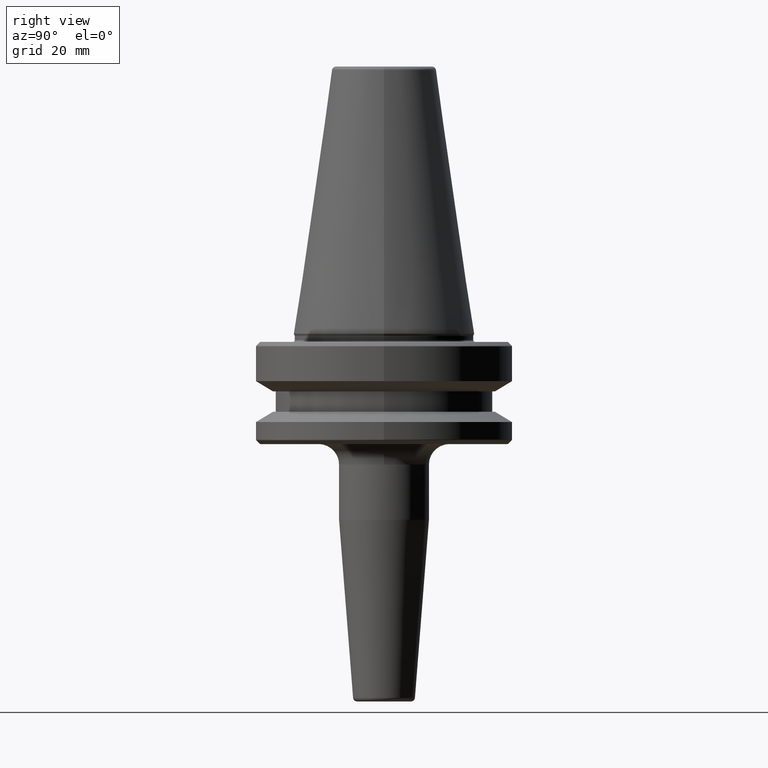
[diagram: clean part render]
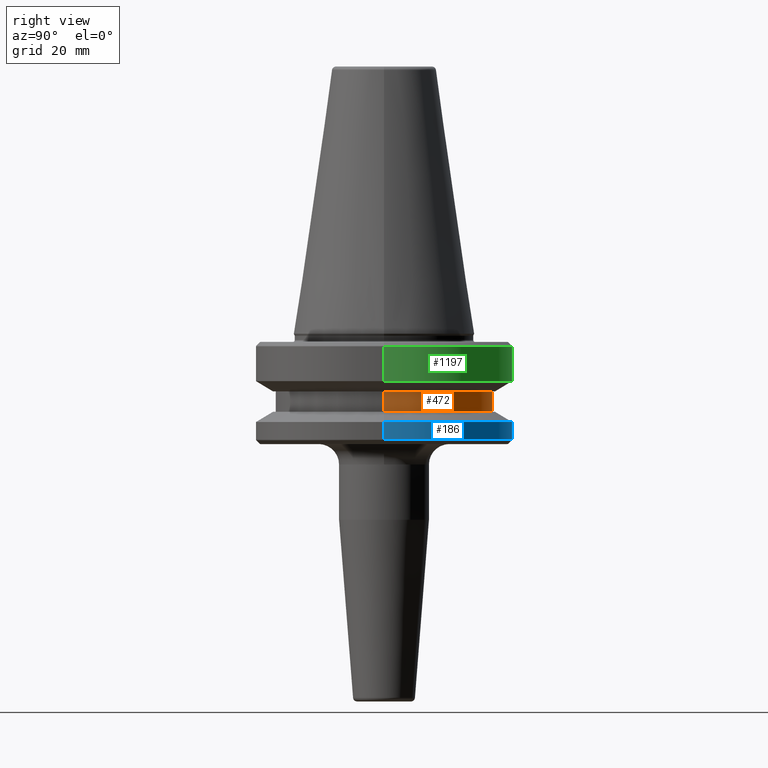
[diagram: same view with three faces highlighted in distinct colors, each labeled with its STEP entity id]
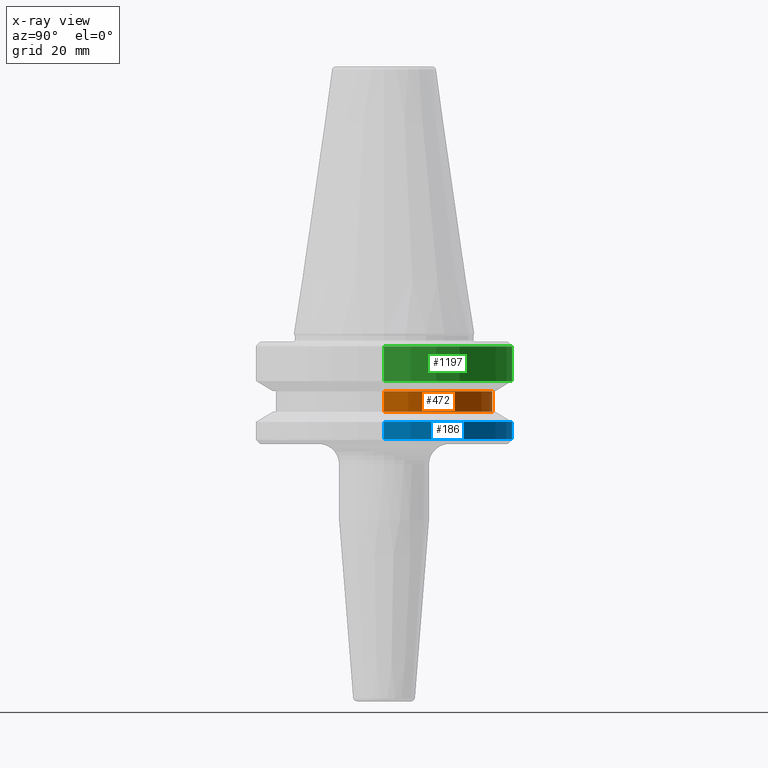
[diagram: x-ray of the same camera — body ghosted, the three highlighted faces saturated]
A machine part, right view with three faces highlighted in distinct colors.
The next image is the same camera in x-ray (body ghosted, the three faces saturated) — at least one of them is partly hidden behind the body in this view.
Their STEP definitions:

[orange] entity #472 — the highlighted cylindrical surface (partial cylindrical patch) has radius 26.5 mm, axis along (-0, -0, 1).
#43 = EDGE_CURVE ( 'NONE', #965, #781, #1105, .T. ) ;
#71 = CARTESIAN_POINT ( 'NONE',  ( -26.50000000000000000, 3.245314017740485800E-015, 69.75694866325665100 ) ) ;
#87 = VERTEX_POINT ( 'NONE', #402 ) ;
#97 = EDGE_CURVE ( 'NONE', #1213, #781, #494, .T. ) ;
#117 = AXIS2_PLACEMENT_3D ( 'NONE', #299, #991, #400 ) ;
#237 = DIRECTION ( 'NONE',  ( -0.0000000000000000000, -0.0000000000000000000, 1.000000000000000000 ) ) ;
#267 = DIRECTION ( 'NONE',  ( -0.0000000000000000000, -0.0000000000000000000, 1.000000000000000000 ) ) ;
#299 = CARTESIAN_POINT ( 'NONE',  ( 0.0000000000000000000, 0.0000000000000000000, -19.10000000000000500 ) ) ;
#335 = CARTESIAN_POINT ( 'NONE',  ( -26.50000000000000000, 3.245314017740485800E-015, -19.10000000000000500 ) ) ;
#400 = DIRECTION ( 'NONE',  ( 1.000000000000000000, 0.0000000000000000000, 0.0000000000000000000 ) ) ;
#401 = AXIS2_PLACEMENT_3D ( 'NONE', #505, #1199, #1050 ) ;
#402 = CARTESIAN_POINT ( 'NONE',  ( 26.50000000000000000, 0.0000000000000000000, -19.10000000000000500 ) ) ;
#417 = VECTOR ( 'NONE', #237, 1000.000000000000000 ) ;
#472 = ADVANCED_FACE ( 'NONE', ( #1008 ), #1248, .T. ) ;
#494 = LINE ( 'NONE', #71, #553 ) ;
#505 = CARTESIAN_POINT ( 'NONE',  ( 0.0000000000000000000, 0.0000000000000000000, -14.10000000000000100 ) ) ;
#530 = EDGE_CURVE ( 'NONE', #87, #1213, #695, .T. ) ;
#550 = DIRECTION ( 'NONE',  ( -0.0000000000000000000, -0.0000000000000000000, 1.000000000000000000 ) ) ;
#553 = VECTOR ( 'NONE', #267, 1000.000000000000000 ) ;
#650 = DIRECTION ( 'NONE',  ( 1.000000000000000000, 0.0000000000000000000, 0.0000000000000000000 ) ) ;
#666 = LINE ( 'NONE', #836, #417 ) ;
#695 = CIRCLE ( 'NONE', #117, 26.50000000000000000 ) ;
#716 = EDGE_LOOP ( 'NONE', ( #761, #825, #1223, #899 ) ) ;
#761 = ORIENTED_EDGE ( 'NONE', *, *, #530, .T. ) ;
#781 = VERTEX_POINT ( 'NONE', #1258 ) ;
#825 = ORIENTED_EDGE ( 'NONE', *, *, #97, .T. ) ;
#836 = CARTESIAN_POINT ( 'NONE',  ( 26.50000000000000000, 0.0000000000000000000, 69.75694866325665100 ) ) ;
#899 = ORIENTED_EDGE ( 'NONE', *, *, #1205, .F. ) ;
#943 = CARTESIAN_POINT ( 'NONE',  ( 0.0000000000000000000, 0.0000000000000000000, 69.75694866325665100 ) ) ;
#965 = VERTEX_POINT ( 'NONE', #1152 ) ;
#991 = DIRECTION ( 'NONE',  ( -0.0000000000000000000, -0.0000000000000000000, 1.000000000000000000 ) ) ;
#1008 = FACE_OUTER_BOUND ( 'NONE', #716, .T. ) ;
#1050 = DIRECTION ( 'NONE',  ( 1.000000000000000000, 0.0000000000000000000, 0.0000000000000000000 ) ) ;
#1074 = AXIS2_PLACEMENT_3D ( 'NONE', #943, #550, #650 ) ;
#1105 = CIRCLE ( 'NONE', #401, 26.50000000000000000 ) ;
#1152 = CARTESIAN_POINT ( 'NONE',  ( 26.50000000000000000, 0.0000000000000000000, -14.10000000000000100 ) ) ;
#1199 = DIRECTION ( 'NONE',  ( -0.0000000000000000000, -0.0000000000000000000, 1.000000000000000000 ) ) ;
#1205 = EDGE_CURVE ( 'NONE', #87, #965, #666, .T. ) ;
#1213 = VERTEX_POINT ( 'NONE', #335 ) ;
#1223 = ORIENTED_EDGE ( 'NONE', *, *, #43, .F. ) ;
#1248 = CYLINDRICAL_SURFACE ( 'NONE', #1074, 26.50000000000000000 ) ;
#1258 = CARTESIAN_POINT ( 'NONE',  ( -26.50000000000000000, 3.245314017740485800E-015, -14.10000000000000100 ) ) ;

[blue] entity #186 — the highlighted cylindrical surface (partial cylindrical patch) has radius 31.5 mm, axis along (-0, -0, 1).
#100 = FACE_OUTER_BOUND ( 'NONE', #1053, .T. ) ;
#148 = DIRECTION ( 'NONE',  ( -0.0000000000000000000, -0.0000000000000000000, 1.000000000000000000 ) ) ;
#166 = EDGE_CURVE ( 'NONE', #887, #269, #958, .T. ) ;
#186 = ADVANCED_FACE ( 'NONE', ( #100 ), #330, .T. ) ;
#221 = DIRECTION ( 'NONE',  ( -0.0000000000000000000, -0.0000000000000000000, 1.000000000000000000 ) ) ;
#245 = EDGE_CURVE ( 'NONE', #395, #976, #274, .T. ) ;
#253 = DIRECTION ( 'NONE',  ( -0.0000000000000000000, -0.0000000000000000000, 1.000000000000000000 ) ) ;
#269 = VERTEX_POINT ( 'NONE', #1103 ) ;
#274 = LINE ( 'NONE', #607, #1024 ) ;
#289 = ORIENTED_EDGE ( 'NONE', *, *, #302, .T. ) ;
#302 = EDGE_CURVE ( 'NONE', #395, #887, #935, .T. ) ;
#306 = CARTESIAN_POINT ( 'NONE',  ( 0.0000000000000000000, 0.0000000000000000000, 69.75694866325665100 ) ) ;
#330 = CYLINDRICAL_SURFACE ( 'NONE', #1005, 31.50000000000000000 ) ;
#346 = CARTESIAN_POINT ( 'NONE',  ( -31.50000000000000000, 3.857637417314162700E-015, -25.83431457505076900 ) ) ;
#391 = VECTOR ( 'NONE', #221, 1000.000000000000000 ) ;
#395 = VERTEX_POINT ( 'NONE', #527 ) ;
#408 = DIRECTION ( 'NONE',  ( -0.0000000000000000000, -0.0000000000000000000, 1.000000000000000000 ) ) ;
#446 = ORIENTED_EDGE ( 'NONE', *, *, #245, .F. ) ;
#450 = EDGE_CURVE ( 'NONE', #976, #269, #1104, .T. ) ;
#484 = ORIENTED_EDGE ( 'NONE', *, *, #450, .F. ) ;
#508 = DIRECTION ( 'NONE',  ( -0.0000000000000000000, -0.0000000000000000000, 1.000000000000000000 ) ) ;
#524 = CARTESIAN_POINT ( 'NONE',  ( -31.50000000000000000, 3.857637417314162700E-015, 69.75694866325665100 ) ) ;
#527 = CARTESIAN_POINT ( 'NONE',  ( 31.50000000000000000, 0.0000000000000000000, -25.83431457505076900 ) ) ;
#607 = CARTESIAN_POINT ( 'NONE',  ( 31.50000000000000000, 0.0000000000000000000, 69.75694866325665100 ) ) ;
#665 = CARTESIAN_POINT ( 'NONE',  ( 31.50000000000000000, 0.0000000000000000000, -21.60014200631675500 ) ) ;
#755 = CARTESIAN_POINT ( 'NONE',  ( 0.0000000000000000000, 0.0000000000000000000, -21.60014200631675500 ) ) ;
#821 = AXIS2_PLACEMENT_3D ( 'NONE', #854, #253, #949 ) ;
#845 = DIRECTION ( 'NONE',  ( 1.000000000000000000, 0.0000000000000000000, 0.0000000000000000000 ) ) ;
#854 = CARTESIAN_POINT ( 'NONE',  ( 0.0000000000000000000, 0.0000000000000000000, -25.83431457505076900 ) ) ;
#887 = VERTEX_POINT ( 'NONE', #346 ) ;
#907 = DIRECTION ( 'NONE',  ( 1.000000000000000000, 0.0000000000000000000, 0.0000000000000000000 ) ) ;
#935 = CIRCLE ( 'NONE', #821, 31.50000000000000000 ) ;
#949 = DIRECTION ( 'NONE',  ( 1.000000000000000000, 0.0000000000000000000, 0.0000000000000000000 ) ) ;
#958 = LINE ( 'NONE', #524, #391 ) ;
#973 = ORIENTED_EDGE ( 'NONE', *, *, #166, .T. ) ;
#976 = VERTEX_POINT ( 'NONE', #665 ) ;
#1005 = AXIS2_PLACEMENT_3D ( 'NONE', #306, #408, #907 ) ;
#1024 = VECTOR ( 'NONE', #508, 1000.000000000000000 ) ;
#1053 = EDGE_LOOP ( 'NONE', ( #289, #973, #484, #446 ) ) ;
#1073 = AXIS2_PLACEMENT_3D ( 'NONE', #755, #148, #845 ) ;
#1103 = CARTESIAN_POINT ( 'NONE',  ( -31.50000000000000000, 3.857637417314162700E-015, -21.60014200631675500 ) ) ;
#1104 = CIRCLE ( 'NONE', #1073, 31.50000000000000000 ) ;

[green] entity #1197 — the highlighted cylindrical surface (partial cylindrical patch) has radius 31.5 mm, axis along (-0, -0, 1).
#54 = EDGE_CURVE ( 'NONE', #129, #604, #1078, .T. ) ;
#58 = DIRECTION ( 'NONE',  ( 1.000000000000000000, 0.0000000000000000000, 0.0000000000000000000 ) ) ;
#126 = EDGE_CURVE ( 'NONE', #178, #528, #468, .T. ) ;
#129 = VERTEX_POINT ( 'NONE', #1077 ) ;
#134 = DIRECTION ( 'NONE',  ( 1.000000000000000000, 0.0000000000000000000, 0.0000000000000000000 ) ) ;
#178 = VERTEX_POINT ( 'NONE', #1271 ) ;
#227 = CARTESIAN_POINT ( 'NONE',  ( 0.0000000000000000000, 0.0000000000000000000, -3.165685424949243700 ) ) ;
#241 = DIRECTION ( 'NONE',  ( -0.0000000000000000000, -0.0000000000000000000, 1.000000000000000000 ) ) ;
#327 = DIRECTION ( 'NONE',  ( 1.000000000000000000, 0.0000000000000000000, 0.0000000000000000000 ) ) ;
#468 = LINE ( 'NONE', #977, #1218 ) ;
#528 = VERTEX_POINT ( 'NONE', #987 ) ;
#590 = EDGE_LOOP ( 'NONE', ( #1151, #838, #978, #1128 ) ) ;
#595 = CARTESIAN_POINT ( 'NONE',  ( 31.49999999999999300, 0.0000000000000000000, -3.165685424949243700 ) ) ;
#604 = VERTEX_POINT ( 'NONE', #595 ) ;
#651 = DIRECTION ( 'NONE',  ( -0.0000000000000000000, -0.0000000000000000000, 1.000000000000000000 ) ) ;
#694 = FACE_OUTER_BOUND ( 'NONE', #590, .T. ) ;
#803 = AXIS2_PLACEMENT_3D ( 'NONE', #942, #927, #134 ) ;
#818 = VECTOR ( 'NONE', #241, 1000.000000000000000 ) ;
#826 = AXIS2_PLACEMENT_3D ( 'NONE', #227, #923, #327 ) ;
#838 = ORIENTED_EDGE ( 'NONE', *, *, #126, .T. ) ;
#846 = CIRCLE ( 'NONE', #826, 31.49999999999999300 ) ;
#917 = CYLINDRICAL_SURFACE ( 'NONE', #803, 31.50000000000000000 ) ;
#923 = DIRECTION ( 'NONE',  ( -0.0000000000000000000, -0.0000000000000000000, 1.000000000000000000 ) ) ;
#927 = DIRECTION ( 'NONE',  ( -0.0000000000000000000, -0.0000000000000000000, 1.000000000000000000 ) ) ;
#942 = CARTESIAN_POINT ( 'NONE',  ( 0.0000000000000000000, 0.0000000000000000000, 69.75694866325665100 ) ) ;
#966 = EDGE_CURVE ( 'NONE', #604, #528, #846, .T. ) ;
#977 = CARTESIAN_POINT ( 'NONE',  ( -31.50000000000000000, 3.857637417314162700E-015, 69.75694866325665100 ) ) ;
#978 = ORIENTED_EDGE ( 'NONE', *, *, #966, .F. ) ;
#987 = CARTESIAN_POINT ( 'NONE',  ( -31.49999999999999300, 3.857637417314161900E-015, -3.165685424949243700 ) ) ;
#993 = AXIS2_PLACEMENT_3D ( 'NONE', #1240, #651, #58 ) ;
#1077 = CARTESIAN_POINT ( 'NONE',  ( 31.50000000000000000, 0.0000000000000000000, -11.59985799368323700 ) ) ;
#1078 = LINE ( 'NONE', #1094, #818 ) ;
#1094 = CARTESIAN_POINT ( 'NONE',  ( 31.50000000000000000, 0.0000000000000000000, 69.75694866325665100 ) ) ;
#1128 = ORIENTED_EDGE ( 'NONE', *, *, #54, .F. ) ;
#1151 = ORIENTED_EDGE ( 'NONE', *, *, #1264, .T. ) ;
#1157 = CIRCLE ( 'NONE', #993, 31.50000000000000000 ) ;
#1179 = DIRECTION ( 'NONE',  ( -0.0000000000000000000, -0.0000000000000000000, 1.000000000000000000 ) ) ;
#1197 = ADVANCED_FACE ( 'NONE', ( #694 ), #917, .T. ) ;
#1218 = VECTOR ( 'NONE', #1179, 1000.000000000000000 ) ;
#1240 = CARTESIAN_POINT ( 'NONE',  ( 0.0000000000000000000, 0.0000000000000000000, -11.59985799368323700 ) ) ;
#1264 = EDGE_CURVE ( 'NONE', #129, #178, #1157, .T. ) ;
#1271 = CARTESIAN_POINT ( 'NONE',  ( -31.50000000000000000, 3.857637417314162700E-015, -11.59985799368323700 ) ) ;